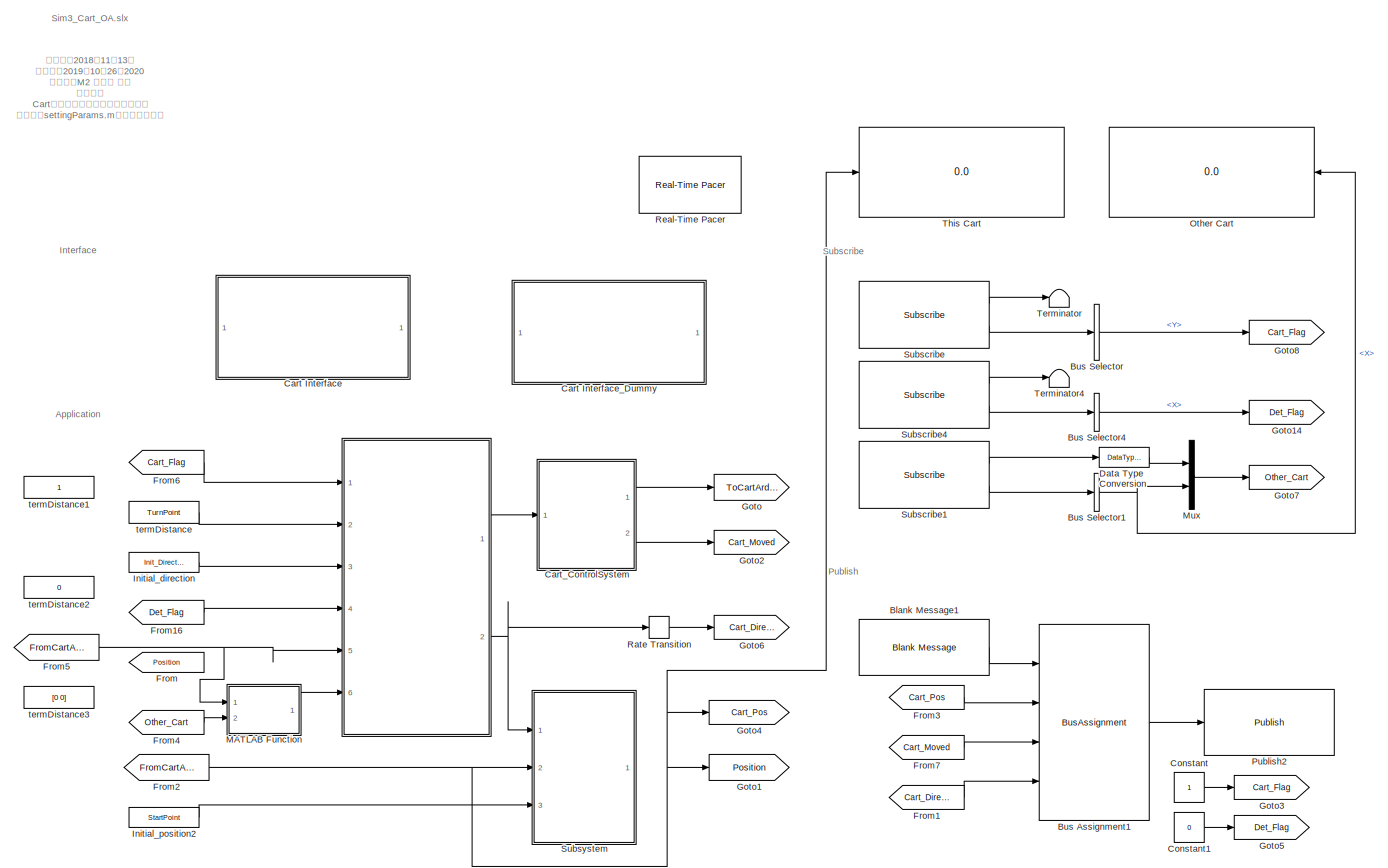
[diagram: root canvas - part 1/1, most of the canvas]
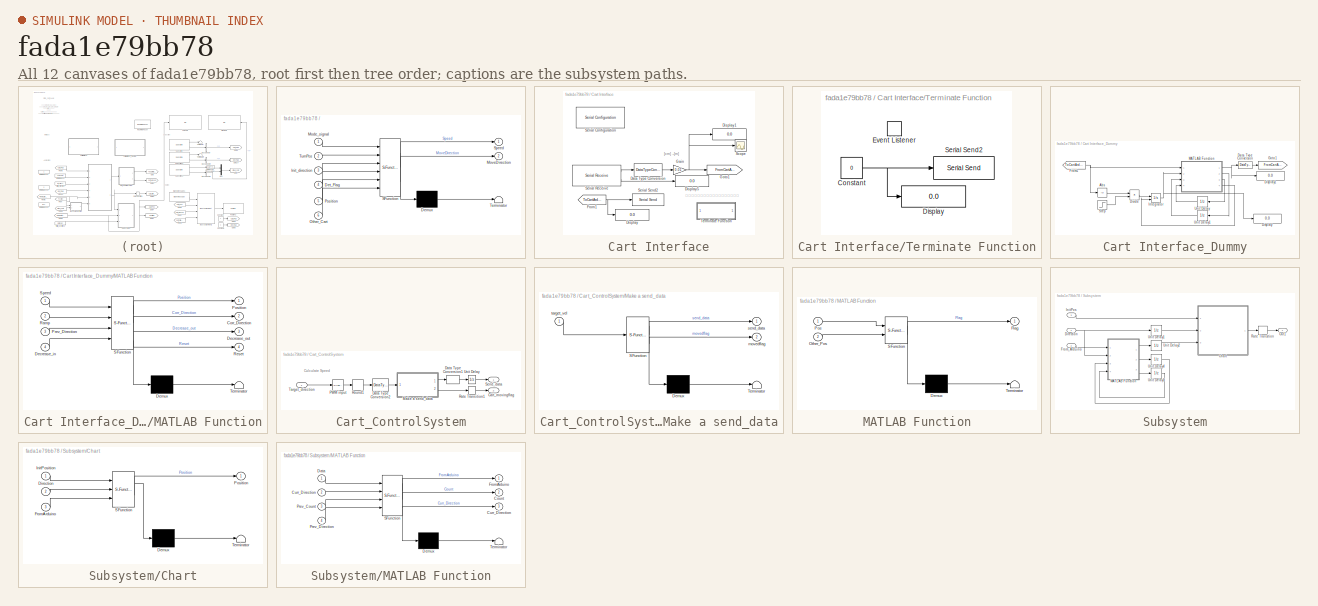
[diagram: thumbnail index - all 12 canvases of the model, root first then tree order]
MODEL slx_fada1e79bb78
KIND model
CONFIG AbsTol = auto
CONFIG EnableMultiTasking = off
CONFIG FixedStep = auto
CONFIG InitFcn = run('settingParams.m')
CONFIG MaxStep = auto
CONFIG MinStep = auto
CONFIG RelTol = 1e-3
CONFIG SampleTimeConstraint = Unconstrained
CONFIG SolverName = VariableStepAuto
CONFIG StartTime = 0.0
CONFIG StopTime = Inf
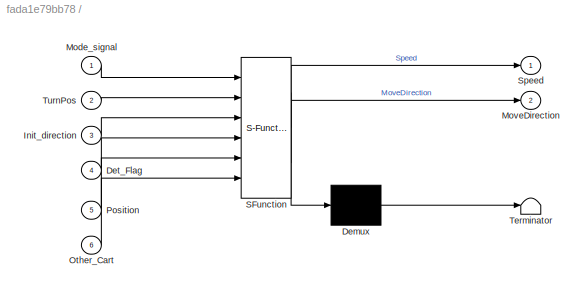
BLOCK [SubSystem]  
  ErrorFcn = Stateflow.Translate.translate
  PermitHierarchicalResolution = ExplicitOnly
  Ports = [6, 2]
  RequestExecContextInheritance = off
  SFBlockType = Chart
  TreatAsAtomicUnit = on
BLOCK [Demux]  / Demux 
  Outputs = 1
  Ports = [1, 1]
BLOCK [S-Function]  / SFunction 
  EnableBusSupport = off
  FunctionName = sf_sfun
  PortCounts = [6 3]
  Ports = [6, 3]
  SFcnIsStateOwnerBlock = off
  SFunctionDeploymentMode = off
  Tag = Stateflow S-Function 17
BLOCK [Terminator]  / Terminator 
BLOCK [Inport]  /Det_Flag
  Port = 4
BLOCK [Inport]  /Init_direction
  Port = 3
BLOCK [Inport]  /Mode_signal
BLOCK [Outport]  /MoveDirection
  Port = 2
  VectorParamsAs1DForOutWhenUnconnected = off
BLOCK [Inport]  /Other_Cart
  Port = 6
BLOCK [Inport]  /Position
  Port = 5
BLOCK [Outport]  /Speed
  VectorParamsAs1DForOutWhenUnconnected = off
BLOCK [Inport]  /TurnPos
  Port = 2
BLOCK [Reference] Blank Message1  REF=robotlib/Blank Message
  Ports = [0, 1]
  SourceBlock = robotlib/Blank Message
  SourceProductBaseCode = RR
  SourceType = ROS Blank Message
BLOCK [BusAssignment] Bus Assignment1
  AssignedSignals = Twist.Linear.X,Twist.Linear.Y,Twist.Linear.Z
  Ports = [4, 1]
BLOCK [BusSelector] Bus Selector
  OutputSignals = Twist.Linear.Y
  Ports = [1, 1]
BLOCK [BusSelector] Bus Selector1
  OutputSignals = Twist.Linear.X
  Ports = [1, 1]
BLOCK [BusSelector] Bus Selector4
  OutputSignals = Twist.Linear.X
  Ports = [1, 1]
BLOCK [SubSystem] Cart Interface
  Ports = []
  RequestExecContextInheritance = off
BLOCK [DataTypeConversion] Cart Interface/Data Type Conversion
  OutDataTypeStr = double
  RndMeth = Floor
  SaturateOnIntegerOverflow = off
BLOCK [Display] Cart Interface/Display
  Commented = on
  Decimation = 1
  Format = binary (Stored Integer)
  Ports = [1]
BLOCK [Display] Cart Interface/Display1
  Commented = on
  Decimation = 1
  Format = long
  Ports = [1]
BLOCK [Display] Cart Interface/Display5
  Commented = on
  Decimation = 1
  Ports = [1]
BLOCK [From] Cart Interface/From1
  GotoTag = ToCartArduino
  TagVisibility = global
BLOCK [Gain] Cart Interface/Gain
  Gain = 0.01
BLOCK [Goto] Cart Interface/Goto1
  GotoTag = FromCartArduino
  TagVisibility = global
BLOCK [Scope] Cart Interface/Scope
  Floating = off
  NumInputPorts = 1
  Ports = [1]
  ScopeSpecificationString = Simulink.scopes.TimeScopeBlockCfg('CurrentConfiguration', extmgr.ConfigurationSet(extmgr.Configuration('Core','General UI',true),extmgr.Configuration('Core','Source UI',true),extmgr.Configuration('Sources','WiredSimulink',true),extmgr.Configuration('Visuals','Time Domain',true,'SerializedDisplays',{struct('MinYLimReal','-3','MaxYLimReal','3','YLabelReal','','MinYLimMag','0.00000','MaxYLimMag','87....<+1397ch>
BLOCK [Reference] Cart Interface/Serial Configuration  REF=instrumentseriallib/Serial Configuration
  Ports = []
  Priority = -200000
  SourceBlock = instrumentseriallib/Serial Configuration
  SourceProductBaseCode = IC
  SourceType = system.SerialConfiguration
BLOCK [Reference] Cart Interface/Serial Receive  REF=instrumentseriallib/Serial Receive
  Ports = [0, 2]
  Priority = 1
  SourceBlock = instrumentseriallib/Serial Receive
  SourceProductBaseCode = IC
  SourceType = system.SerialReceive
BLOCK [Reference] Cart Interface/Serial Send2  REF=instrumentseriallib/Serial Send
  Ports = [1]
  SourceBlock = instrumentseriallib/Serial Send
  SourceProductBaseCode = IC
  SourceType = system.SerialSend
BLOCK [SubSystem] Cart Interface/Terminate Function
  Ports = []
  RequestExecContextInheritance = off
  TreatAsAtomicUnit = on
BLOCK [Constant] Cart Interface/Terminate Function/Constant
  OutDataTypeStr = uint8
  Value = 0
BLOCK [Display] Cart Interface/Terminate Function/Display
  Commented = on
  Decimation = 1
  Format = binary (Stored Integer)
  Ports = [1]
BLOCK [EventListener] Cart Interface/Terminate Function/Event Listener
  DisableCoverage = on
  EventName = reset
  EventType = Terminate
BLOCK [Reference] Cart Interface/Terminate Function/Serial Send2  REF=instrumentseriallib/Serial Send
  Ports = [1]
  SourceBlock = instrumentseriallib/Serial Send
  SourceProductBaseCode = IC
  SourceType = system.SerialSend
BLOCK [SubSystem] Cart Interface_Dummy
  Commented = on
  Ports = []
  RequestExecContextInheritance = off
BLOCK [Abs] Cart Interface_Dummy/Abs
  SaturateOnIntegerOverflow = off
BLOCK [DataTypeConversion] Cart Interface_Dummy/Data Type Conversion
  OutDataTypeStr = uint8
  RndMeth = Floor
  SaturateOnIntegerOverflow = off
BLOCK [Display] Cart Interface_Dummy/Display
  Decimation = 1
  Ports = [1]
BLOCK [Display] Cart Interface_Dummy/Display1
  Decimation = 1
  Format = binary (Stored Integer)
  Ports = [1]
BLOCK [Product] Cart Interface_Dummy/Divide
  Inputs = **
  Ports = [2, 1]
BLOCK [From] Cart Interface_Dummy/From1
  GotoTag = ToCartArduino
  TagVisibility = global
BLOCK [Goto] Cart Interface_Dummy/Goto1
  GotoTag = FromCartArduino
  TagVisibility = global
BLOCK [Integrator] Cart Interface_Dummy/Integrator
  ExternalReset = rising
  Ports = [2, 1]
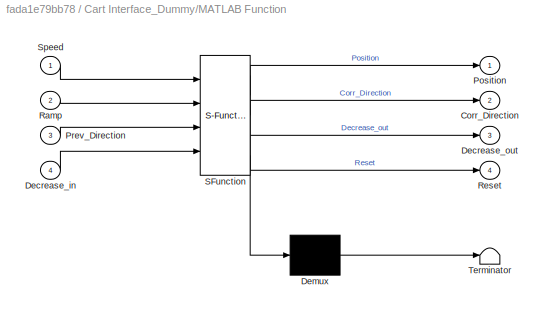
BLOCK [SubSystem] Cart Interface_Dummy/MATLAB Function
  ErrorFcn = Stateflow.Translate.translate
  PermitHierarchicalResolution = ExplicitOnly
  Ports = [4, 4]
  RequestExecContextInheritance = off
  SFBlockType = MATLAB Function
  TreatAsAtomicUnit = on
BLOCK [Demux] Cart Interface_Dummy/MATLAB Function/ Demux 
  Outputs = 1
  Ports = [1, 1]
BLOCK [S-Function] Cart Interface_Dummy/MATLAB Function/ SFunction 
  EnableBusSupport = off
  FunctionName = sf_sfun
  PortCounts = [4 5]
  Ports = [4, 5]
  SFcnIsStateOwnerBlock = off
  SFunctionDeploymentMode = off
  Tag = Stateflow S-Function 2
BLOCK [Terminator] Cart Interface_Dummy/MATLAB Function/ Terminator 
BLOCK [Outport] Cart Interface_Dummy/MATLAB Function/Corr_Direction
  Port = 2
  VectorParamsAs1DForOutWhenUnconnected = off
BLOCK [Inport] Cart Interface_Dummy/MATLAB Function/Decrease_in
  Port = 4
BLOCK [Outport] Cart Interface_Dummy/MATLAB Function/Decrease_out
  Port = 3
  VectorParamsAs1DForOutWhenUnconnected = off
BLOCK [Outport] Cart Interface_Dummy/MATLAB Function/Position
  VectorParamsAs1DForOutWhenUnconnected = off
BLOCK [Inport] Cart Interface_Dummy/MATLAB Function/Prev_Direction
  Port = 3
BLOCK [Inport] Cart Interface_Dummy/MATLAB Function/Ramp
  Port = 2
BLOCK [Outport] Cart Interface_Dummy/MATLAB Function/Reset
  Port = 4
  VectorParamsAs1DForOutWhenUnconnected = off
BLOCK [Inport] Cart Interface_Dummy/MATLAB Function/Speed
BLOCK [Step] Cart Interface_Dummy/Step
  After = 0.5
  SampleTime = 0
  Time = 0
BLOCK [UnitDelay] Cart Interface_Dummy/Unit Delay
  HasFrameUpgradeWarning = on
  SampleTime = -1
BLOCK [UnitDelay] Cart Interface_Dummy/Unit Delay1
  HasFrameUpgradeWarning = on
  SampleTime = -1
BLOCK [SubSystem] Cart_ControlSystem
  Ports = [1, 2]
  RequestExecContextInheritance = off
BLOCK [Outport] Cart_ControlSystem/Cart_movingflag
  Port = 2
  VectorParamsAs1DForOutWhenUnconnected = off
BLOCK [DataTypeConversion] Cart_ControlSystem/Data Type Conversion1
  OutDataTypeStr = int8
  RndMeth = Floor
  SaturateOnIntegerOverflow = off
BLOCK [DataTypeConversion] Cart_ControlSystem/Data Type Conversion2
  OutDataTypeStr = int8
  RndMeth = Floor
  SaturateOnIntegerOverflow = off
BLOCK [SubSystem] Cart_ControlSystem/Make a send_data
  ErrorFcn = Stateflow.Translate.translate
  PermitHierarchicalResolution = ExplicitOnly
  Ports = [1, 2]
  RequestExecContextInheritance = off
  SFBlockType = MATLAB Function
  TreatAsAtomicUnit = on
BLOCK [Demux] Cart_ControlSystem/Make a send_data/ Demux 
  Outputs = 1
  Ports = [1, 1]
BLOCK [S-Function] Cart_ControlSystem/Make a send_data/ SFunction 
  EnableBusSupport = off
  FunctionName = sf_sfun
  PortCounts = [1 3]
  Ports = [1, 3]
  SFcnIsStateOwnerBlock = off
  SFunctionDeploymentMode = off
  Tag = Stateflow S-Function 20
BLOCK [Terminator] Cart_ControlSystem/Make a send_data/ Terminator 
BLOCK [Outport] Cart_ControlSystem/Make a send_data/movedflag
  Port = 2
  VectorParamsAs1DForOutWhenUnconnected = off
BLOCK [Outport] Cart_ControlSystem/Make a send_data/send_data
  VectorParamsAs1DForOutWhenUnconnected = off
BLOCK [Inport] Cart_ControlSystem/Make a send_data/target_vel
BLOCK [Reference] Cart_ControlSystem/PWM input  REF=simulink/Math
Operations/Slider
Gain
  Ports = [1, 1]
  SourceBlock = simulink/Math\nOperations/Slider\nGain
  SourceProductBaseCode = SL
  SourceType = Slider Gain
BLOCK [RateTransition] Cart_ControlSystem/Rate Transition1
BLOCK [Rounding] Cart_ControlSystem/Round1
  Operator = round
BLOCK [Outport] Cart_ControlSystem/Send_data
  VectorParamsAs1DForOutWhenUnconnected = off
BLOCK [Inport] Cart_ControlSystem/Target_direction
BLOCK [UnitDelay] Cart_ControlSystem/Unit Delay
  HasFrameUpgradeWarning = on
  SampleTime = -1
BLOCK [Constant] Constant
  Commented = on
  SampleTime = dt
BLOCK [Constant] Constant1
  Commented = on
  SampleTime = dt
  Value = 0
BLOCK [DataTypeConversion] Data Type Conversion
  RndMeth = Floor
  SaturateOnIntegerOverflow = off
BLOCK [From] From
  Commented = on
  GotoTag = Position
  TagVisibility = global
BLOCK [From] From1
  GotoTag = Cart_Direction
  TagVisibility = global
BLOCK [From] From16
  GotoTag = Det_Flag
  TagVisibility = global
BLOCK [From] From2
  GotoTag = FromCartArduino
  TagVisibility = global
BLOCK [From] From3
  GotoTag = Cart_Pos
  TagVisibility = global
BLOCK [From] From4
  GotoTag = Other_Cart
  TagVisibility = global
BLOCK [From] From5
  GotoTag = FromCartArduino
  TagVisibility = global
BLOCK [From] From6
  GotoTag = Cart_Flag
  TagVisibility = global
BLOCK [From] From7
  GotoTag = Cart_Moved
  TagVisibility = global
BLOCK [Goto] Goto
  GotoTag = ToCartArduino
  TagVisibility = global
BLOCK [Goto] Goto1
  Commented = on
  GotoTag = Position
  TagVisibility = global
BLOCK [Goto] Goto14
  GotoTag = Det_Flag
  TagVisibility = global
BLOCK [Goto] Goto2
  GotoTag = Cart_Moved
  TagVisibility = global
BLOCK [Goto] Goto3
  Commented = on
  GotoTag = Cart_Flag
  TagVisibility = global
BLOCK [Goto] Goto4
  GotoTag = Cart_Pos
  TagVisibility = global
BLOCK [Goto] Goto5
  Commented = on
  GotoTag = Det_Flag
  TagVisibility = global
BLOCK [Goto] Goto6
  GotoTag = Cart_Direction
  TagVisibility = global
BLOCK [Goto] Goto7
  GotoTag = Other_Cart
  TagVisibility = global
BLOCK [Goto] Goto8
  GotoTag = Cart_Flag
  TagVisibility = global
BLOCK [Constant] Initial_direction
  SampleTime = dt
  Value = Init_Direction
BLOCK [Constant] Initial_position2
  SampleTime = dt
  Value = StartPoint
BLOCK [SubSystem] MATLAB Function
  ErrorFcn = Stateflow.Translate.translate
  PermitHierarchicalResolution = ExplicitOnly
  Ports = [2, 1]
  RequestExecContextInheritance = off
  SFBlockType = MATLAB Function
  TreatAsAtomicUnit = on
BLOCK [Demux] MATLAB Function/ Demux 
  Outputs = 1
  Ports = [1, 1]
BLOCK [S-Function] MATLAB Function/ SFunction 
  EnableBusSupport = off
  FunctionName = sf_sfun
  PortCounts = [2 2]
  Ports = [2, 2]
  SFcnIsStateOwnerBlock = off
  SFunctionDeploymentMode = off
  Tag = Stateflow S-Function 1
BLOCK [Terminator] MATLAB Function/ Terminator 
BLOCK [Outport] MATLAB Function/Flag
  VectorParamsAs1DForOutWhenUnconnected = off
BLOCK [Inport] MATLAB Function/Other_Pos
  Port = 2
BLOCK [Inport] MATLAB Function/Pos
BLOCK [Mux] Mux
  DisplayOption = bar
  Inputs = 2
  Ports = [2, 1]
BLOCK [Display] Other Cart
  Commented = on
  Decimation = 1
  Ports = [1]
BLOCK [Reference] Publish2  REF=robotlib/Publish
  Ports = [1]
  SourceBlock = robotlib/Publish
  SourceProductBaseCode = RR
  SourceType = ROS Publish
BLOCK [RateTransition] Rate Transition
BLOCK [Reference] Real-Time Pacer  REF=realtime_pacer_lib/Real-Time Pacer
  Ports = []
  SourceBlock = realtime_pacer_lib/Real-Time Pacer
  SourceProductName = Real-Time Pacer
  SourceType = RealTime_Pacer
BLOCK [Reference] Subscribe  REF=robotlib/Subscribe
  Ports = [0, 2]
  SourceBlock = robotlib/Subscribe
  SourceProductBaseCode = RR
  SourceType = ROS Subscribe
BLOCK [Reference] Subscribe1  REF=robotlib/Subscribe
  Ports = [0, 2]
  SourceBlock = robotlib/Subscribe
  SourceProductBaseCode = RR
  SourceType = ROS Subscribe
BLOCK [Reference] Subscribe4  REF=robotlib/Subscribe
  Ports = [0, 2]
  SourceBlock = robotlib/Subscribe
  SourceProductBaseCode = RR
  SourceType = ROS Subscribe
BLOCK [SubSystem] Subsystem
  Commented = on
  Ports = [3, 1]
  RequestExecContextInheritance = off
BLOCK [SubSystem] Subsystem/Chart
  ErrorFcn = Stateflow.Translate.translate
  PermitHierarchicalResolution = ExplicitOnly
  Ports = [3, 1]
  RequestExecContextInheritance = off
  SFBlockType = Chart
  TreatAsAtomicUnit = on
BLOCK [Demux] Subsystem/Chart/ Demux 
  Outputs = 1
  Ports = [1, 1]
BLOCK [S-Function] Subsystem/Chart/ SFunction 
  EnableBusSupport = off
  FunctionName = sf_sfun
  PortCounts = [3 2]
  Ports = [3, 2]
  SFcnIsStateOwnerBlock = off
  SFunctionDeploymentMode = off
  Tag = Stateflow S-Function 3
BLOCK [Terminator] Subsystem/Chart/ Terminator 
BLOCK [Inport] Subsystem/Chart/Direction
  Port = 2
BLOCK [Inport] Subsystem/Chart/FromArduino
  Port = 3
BLOCK [Inport] Subsystem/Chart/InitPosition
BLOCK [Outport] Subsystem/Chart/Position
  VectorParamsAs1DForOutWhenUnconnected = off
BLOCK [Inport] Subsystem/Direction
BLOCK [Inport] Subsystem/From_Arduino
  Port = 2
BLOCK [Inport] Subsystem/InitPos
  Port = 3
BLOCK [SubSystem] Subsystem/MATLAB Function
  ErrorFcn = Stateflow.Translate.translate
  PermitHierarchicalResolution = ExplicitOnly
  Ports = [4, 3]
  RequestExecContextInheritance = off
  SFBlockType = MATLAB Function
  TreatAsAtomicUnit = on
BLOCK [Demux] Subsystem/MATLAB Function/ Demux 
  Outputs = 1
  Ports = [1, 1]
BLOCK [S-Function] Subsystem/MATLAB Function/ SFunction 
  EnableBusSupport = off
  FunctionName = sf_sfun
  PortCounts = [4 4]
  Ports = [4, 4]
  SFcnIsStateOwnerBlock = off
  SFunctionDeploymentMode = off
  Tag = Stateflow S-Function 4
BLOCK [Terminator] Subsystem/MATLAB Function/ Terminator 
BLOCK [Outport] Subsystem/MATLAB Function/Count
  Port = 2
  VectorParamsAs1DForOutWhenUnconnected = off
BLOCK [Outport] Subsystem/MATLAB Function/Curr_Direction
  Port = 3
  VectorParamsAs1DForOutWhenUnconnected = off
BLOCK [Inport] Subsystem/MATLAB Function/Curr_Direction 
  Port = 2
BLOCK [Inport] Subsystem/MATLAB Function/Data
BLOCK [Outport] Subsystem/MATLAB Function/FromArduino
  VectorParamsAs1DForOutWhenUnconnected = off
BLOCK [Inport] Subsystem/MATLAB Function/Prev_Count
  Port = 3
BLOCK [Inport] Subsystem/MATLAB Function/Prev_Direction
  Port = 4
BLOCK [Outport] Subsystem/Out1
  VectorParamsAs1DForOutWhenUnconnected = off
BLOCK [RateTransition] Subsystem/Rate Transition
BLOCK [UnitDelay] Subsystem/Unit Delay1
  HasFrameUpgradeWarning = on
  SampleTime = -1
BLOCK [UnitDelay] Subsystem/Unit Delay2
  HasFrameUpgradeWarning = on
  SampleTime = -1
BLOCK [UnitDelay] Subsystem/Unit Delay4
  HasFrameUpgradeWarning = on
  SampleTime = -1
BLOCK [UnitDelay] Subsystem/Unit Delay5
  HasFrameUpgradeWarning = on
  SampleTime = -1
BLOCK [Terminator] Terminator
BLOCK [Terminator] Terminator4
BLOCK [Display] This Cart
  Commented = on
  Decimation = 1
  Ports = [1]
BLOCK [Constant] termDistance
  SampleTime = dt
  Value = TurnPoint
BLOCK [Constant] termDistance1
  Commented = on
  SampleTime = dt
BLOCK [Constant] termDistance2
  Commented = on
  SampleTime = dt
  Value = 0
BLOCK [Constant] termDistance3
  Commented = on
  SampleTime = dt
  Value = [0 0]
ANNOTATION (root): 作成日：2018年11月13日 更新日：2019年10月26日2020 更新者：M2 奈須野 智弘 注意点： Cartを制御するためのモデルです． 実行時にsettingParams.mを実行します． 実働時にはワーカーとして立ち上がるため，Supervisorとは別のワークスペースを適用します． Setting Parameter： RightTurnPoint, LeftTurnPoint, StartPoint, Init_Direction, dt
ANNOTATION (root): Application
ANNOTATION (root): Interface
ANNOTATION (root): Publish
ANNOTATION (root): Sim3_Cart_OA.slx
ANNOTATION (root): Subscribe
ANNOTATION Cart Interface: [cm]→[m]
ANNOTATION Cart Interface: 終了時のみ実行（カートの移動を停止）
ANNOTATION Cart_ControlSystem: Culculate Speed
LINE  :1 -> Cart_ControlSystem:1
NET  :2 -> Rate Transition:1, Subsystem:1
LINE Blank Message1:1 -> Bus Assignment1:1
LINE Bus Assignment1:1 -> Publish2:1
NET Bus Selector1:1 -> Mux:2, Other Cart:1
LINE Bus Selector4:1 -> Goto14:1
LINE Bus Selector:1 -> Goto8:1
LINE Cart Interface/Data Type Conversion:1 -> Cart Interface/Gain:1
NET Cart Interface/From1:1 -> Cart Interface/Display:1, Cart Interface/Serial Send2:1
NET Cart Interface/Gain:1 -> Cart Interface/Display1:1, Cart Interface/Goto1:1, Cart Interface/Scope:1
LINE Cart Interface/Serial Receive:1 -> Cart Interface/Data Type Conversion:1
LINE Cart Interface/Serial Receive:2 -> Cart Interface/Display5:1
NET Cart Interface/Terminate Function/Constant:1 -> Cart Interface/Terminate Function/Display:1, Cart Interface/Terminate Function/Serial Send2:1
LINE Cart Interface_Dummy/Abs:1 -> Cart Interface_Dummy/Divide:1
LINE Cart Interface_Dummy/Data Type Conversion:1 -> Cart Interface_Dummy/Goto1:1
LINE Cart Interface_Dummy/Divide:1 -> Cart Interface_Dummy/Integrator:1
NET Cart Interface_Dummy/From1:1 -> Cart Interface_Dummy/Abs:1, Cart Interface_Dummy/MATLAB Function:1
NET Cart Interface_Dummy/Integrator:1 -> Cart Interface_Dummy/Display:1, Cart Interface_Dummy/MATLAB Function:2
NET Cart Interface_Dummy/MATLAB Function:1 -> Cart Interface_Dummy/Data Type Conversion:1, Cart Interface_Dummy/Display1:1
LINE Cart Interface_Dummy/MATLAB Function:2 -> Cart Interface_Dummy/Unit Delay1:1
LINE Cart Interface_Dummy/MATLAB Function:3 -> Cart Interface_Dummy/Unit Delay:1
LINE Cart Interface_Dummy/MATLAB Function:4 -> Cart Interface_Dummy/Integrator:2
LINE Cart Interface_Dummy/Step:1 -> Cart Interface_Dummy/Divide:2
LINE Cart Interface_Dummy/Unit Delay1:1 -> Cart Interface_Dummy/MATLAB Function:3
LINE Cart Interface_Dummy/Unit Delay:1 -> Cart Interface_Dummy/MATLAB Function:4
LINE Cart_ControlSystem/Data Type Conversion1:1 -> Cart_ControlSystem/Unit Delay:1
LINE Cart_ControlSystem/Data Type Conversion2:1 -> Cart_ControlSystem/Make a send_data:1
LINE Cart_ControlSystem/Make a send_data:1 -> Cart_ControlSystem/Data Type Conversion1:1
LINE Cart_ControlSystem/Make a send_data:2 -> Cart_ControlSystem/Rate Transition1:1
LINE Cart_ControlSystem/PWM input:1 -> Cart_ControlSystem/Round1:1
LINE Cart_ControlSystem/Rate Transition1:1 -> Cart_ControlSystem/Cart_movingflag:1
LINE Cart_ControlSystem/Round1:1 -> Cart_ControlSystem/Data Type Conversion2:1
LINE Cart_ControlSystem/Target_direction:1 -> Cart_ControlSystem/PWM input:1
LINE Cart_ControlSystem/Unit Delay:1 -> Cart_ControlSystem/Send_data:1
LINE Cart_ControlSystem:1 -> Goto:1
LINE Cart_ControlSystem:2 -> Goto2:1
LINE Constant1:1 -> Goto5:1
LINE Constant:1 -> Goto3:1
LINE Data Type Conversion:1 -> Mux:1
LINE From16:1 ->  :4
LINE From1:1 -> Bus Assignment1:4
NET From2:1 -> Goto1:1, Goto4:1, Subsystem:2, This Cart:1
LINE From3:1 -> Bus Assignment1:2
LINE From4:1 -> MATLAB Function:2
NET From5:1 ->  :5, MATLAB Function:1
LINE From6:1 ->  :1
LINE From7:1 -> Bus Assignment1:3
LINE Initial_direction:1 ->  :3
LINE Initial_position2:1 -> Subsystem:3
LINE MATLAB Function:1 ->  :6
LINE Mux:1 -> Goto7:1
LINE Rate Transition:1 -> Goto6:1
LINE Subscribe1:1 -> Data Type Conversion:1
LINE Subscribe1:2 -> Bus Selector1:1
LINE Subscribe4:1 -> Terminator4:1
LINE Subscribe4:2 -> Bus Selector4:1
LINE Subscribe:1 -> Terminator:1
LINE Subscribe:2 -> Bus Selector:1
LINE Subsystem/Chart:1 -> Subsystem/Rate Transition:1
NET Subsystem/Direction:1 -> Subsystem/MATLAB Function:2, Subsystem/Unit Delay1:1
LINE Subsystem/From_Arduino:1 -> Subsystem/MATLAB Function:1
LINE Subsystem/InitPos:1 -> Subsystem/Chart:1
LINE Subsystem/MATLAB Function:1 -> Subsystem/Unit Delay2:1
LINE Subsystem/MATLAB Function:2 -> Subsystem/Unit Delay4:1
LINE Subsystem/MATLAB Function:3 -> Subsystem/Unit Delay5:1
LINE Subsystem/Rate Transition:1 -> Subsystem/Out1:1
LINE Subsystem/Unit Delay1:1 -> Subsystem/Chart:2
LINE Subsystem/Unit Delay2:1 -> Subsystem/Chart:3
LINE Subsystem/Unit Delay4:1 -> Subsystem/MATLAB Function:3
LINE Subsystem/Unit Delay5:1 -> Subsystem/MATLAB Function:4
LINE termDistance:1 ->  :2
note: NET lines group one-source signal fan-out (src -> all destinations, sorted); 1:1 wires keep LINE
CHART MATLAB Function states=1 transitions=1
  STATE_LABEL 'eML_blk_kernel()'
  STATE_LABEL 'SCRIPT:\nfunction Flag = fcn(Pos, Other_Pos)\n\nif Other_Pos(1) == 0\n    Flag = 0;\nelse\n    if abs(Other_Pos(2) - Pos) < 0.95 && Pos > 0.0\n        Flag = 1;\n    else\n        Flag = 0;\n    end\nend'
CHART Cart Interface_Dummy/MATLAB Function states=1 transitions=1
  STATE_LABEL 'eML_blk_kernel()'
  STATE_LABEL 'SCRIPT:\nfunction [Position, Corr_Direction,Decrease_out, Reset] = fcn(Speed,Ramp,Prev_Direction,Decrease_in)\nflag = 0;\n\nif Speed > 0\n    Corr_Direction = 1;\nelseif Speed < 0\n    Corr_Direction = -1;\nelse\n    Corr_Direction = Prev_Direction;\nend\n\nif Ramp < Decrease_in\n    Decrease_out = 0;\nelse\n    Decrease_out = Decrease_in;\nend\n\nPosit = uint8(Ramp - Decrease_out);\n\nif Corr_Direction * Prev_Direct...<+259ch>'
CHART Subsystem/Chart states=5 transitions=11
  STATE_LABEL 'Stop/\nentry:\nPosition = Position;'
  STATE_LABEL 'WaitTime1/\nentry:\nPosition = Position;'
  STATE_LABEL 'Move_Left/\nentry:\nPrev_Direction = 1;\nPosition = TurnPos - ((FromArduino(1) * 100) + FromArduino(2)) / 100;'
  STATE_LABEL 'Move_Right/\nentry:\nPrev_Direction = -1;\nPosition = TurnPos + (FromArduino(1) * 100 + FromArduino(2)) / 100;'
  STATE_LABEL 'WaitTime2/\nentry:\nPosition = Position;'
CHART Subsystem/MATLAB Function states=1 transitions=1
  STATE_LABEL 'eML_blk_kernel()'
  STATE_LABEL 'SCRIPT:\nfunction [FromArduino, Count, Curr_Direction] = fcn(Data, Curr_Direction, Prev_Count, Prev_Direction)\n% 入力(data)を右に7bitシフトして、上位1bitを取り出す\nFlag = double(bitshift(Data,-7));\n\n% 入力(data)と127(01111111)のAND演算をして、下位7bitを取り出す\nDistance = double(bitand(Data, 127));\n\n% Check Parameters\nif Curr_Direction * Prev_Direction == -1\n    Count = 0;\nelseif Flag == 1\n    Count = Prev_Count + 1;\nelse\n    Count ...<+51ch>'
CHART   states=8 transitions=14
  STATE_LABEL 'Wait/\nentry:Speed=0;'
  STATE_LABEL 'Movable/\nentry:'
  STATE_LABEL 'check/'
  STATE_LABEL 'Right/\nentry:\nSpeed = -1;\nMoveDirection = -1;'
  STATE_LABEL 'Left/\nentry:\nSpeed = 1;\nMoveDirection = 1;'
  STATE_LABEL 'ChangeDirection/\nentry:\nMoveDirection = -1 * MoveDirection;'
  STATE_LABEL '[MoveDirection == 1]'
  STATE_LABEL '[MoveDirection == -1]'
  STATE_LABEL '[Position >= TurnPos(1)-0.1]'
  STATE_LABEL '[Position <= TurnPos(2)+0.1]'
  STATE_LABEL 'check/'
  STATE_LABEL 'Right/\nentry:\nSpeed = -1;\nMoveDirection = -1;'
  STATE_LABEL 'Left/\nentry:\nSpeed = 1;\nMoveDirection = 1;'
  STATE_LABEL 'ChangeDirection/\nentry:\nMoveDirection = -1 * MoveDirection;'
  STATE_LABEL 'OtherCart_Near/\nentry:\nSpeed = 0;'
  STATE_LABEL 'OtherCart_Near1/\nentry:\nMoveDirection = -1 * MoveDirection;\nSpeed = MoveDirection;'
CHART Cart_ControlSystem/Make a send_data states=1 transitions=1
  STATE_LABEL 'eML_blk_kernel()'
  STATE_LABEL 'SCRIPT:\nfunction [send_data,movedflag] = fcn(target_vel)\n\nsend_data = target_vel;\n\nif(target_vel == 0)\n    movedflag = 1;\nelse\n    movedflag = 0;\nend'
CHART  states=0 transitions=0
CHART  states=0 transitions=0
CHART  states=0 transitions=0
CHART  states=0 transitions=0
CHART  states=0 transitions=0
CHART  states=0 transitions=0
